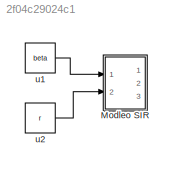
MODEL slx_2f04c29024c1
KIND model
CONFIG AbsTol = auto
CONFIG EnableMultiTasking = off
CONFIG FixedStep = auto
CONFIG MaxStep = auto
CONFIG MinStep = auto
CONFIG RelTol = 1e-3
CONFIG SampleTimeConstraint = Unconstrained
CONFIG Solver = VariableStepAuto
CONFIG SolverName = VariableStepAuto
CONFIG StartTime = 0.0
CONFIG StopTime = 10.0
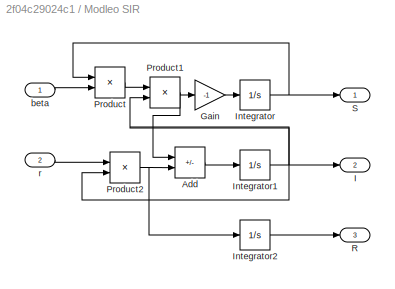
BLOCK [SubSystem] Modleo SIR
  Ports = [2, 3]
  RequestExecContextInheritance = off
BLOCK [Sum] Modleo SIR/Add
  IconShape = rectangular
  Inputs = +-
  Ports = [2, 1]
BLOCK [Gain] Modleo SIR/Gain
  Gain = -1
BLOCK [Outport] Modleo SIR/I
  Port = 2
BLOCK [Integrator] Modleo SIR/Integrator
  InitialCondition = S0
  Ports = [1, 1]
BLOCK [Integrator] Modleo SIR/Integrator1
  InitialCondition = I0
  Ports = [1, 1]
BLOCK [Integrator] Modleo SIR/Integrator2
  InitialCondition = R0
  Ports = [1, 1]
BLOCK [Product] Modleo SIR/Product
  Ports = [2, 1]
BLOCK [Product] Modleo SIR/Product1
  Ports = [2, 1]
BLOCK [Product] Modleo SIR/Product2
  Ports = [2, 1]
BLOCK [Outport] Modleo SIR/R
  Port = 3
BLOCK [Outport] Modleo SIR/S
BLOCK [Inport] Modleo SIR/beta
BLOCK [Inport] Modleo SIR/r
  Port = 2
BLOCK [Constant] u1
  Value = beta
BLOCK [Constant] u2
  Value = r
LINE Modleo SIR/Add:1 -> Modleo SIR/Integrator1:1
LINE Modleo SIR/Gain:1 -> Modleo SIR/Integrator:1
NET Modleo SIR/Integrator1:1 -> Modleo SIR/I:1, Modleo SIR/Product1:2, Modleo SIR/Product2:2
LINE Modleo SIR/Integrator2:1 -> Modleo SIR/R:1
NET Modleo SIR/Integrator:1 -> Modleo SIR/Product:1, Modleo SIR/S:1
NET Modleo SIR/Product1:1 -> Modleo SIR/Add:1, Modleo SIR/Gain:1
NET Modleo SIR/Product2:1 -> Modleo SIR/Add:2, Modleo SIR/Integrator2:1
LINE Modleo SIR/Product:1 -> Modleo SIR/Product1:1
LINE Modleo SIR/beta:1 -> Modleo SIR/Product:2
LINE Modleo SIR/r:1 -> Modleo SIR/Product2:1
LINE u1:1 -> Modleo SIR:1
LINE u2:1 -> Modleo SIR:2
note: NET lines group one-source signal fan-out (src -> all destinations, sorted); 1:1 wires keep LINE
